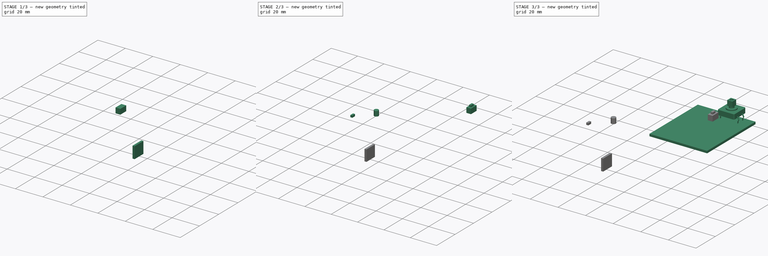
[diagram: build sequence overview — one tinted view per stage of 3, left to right]
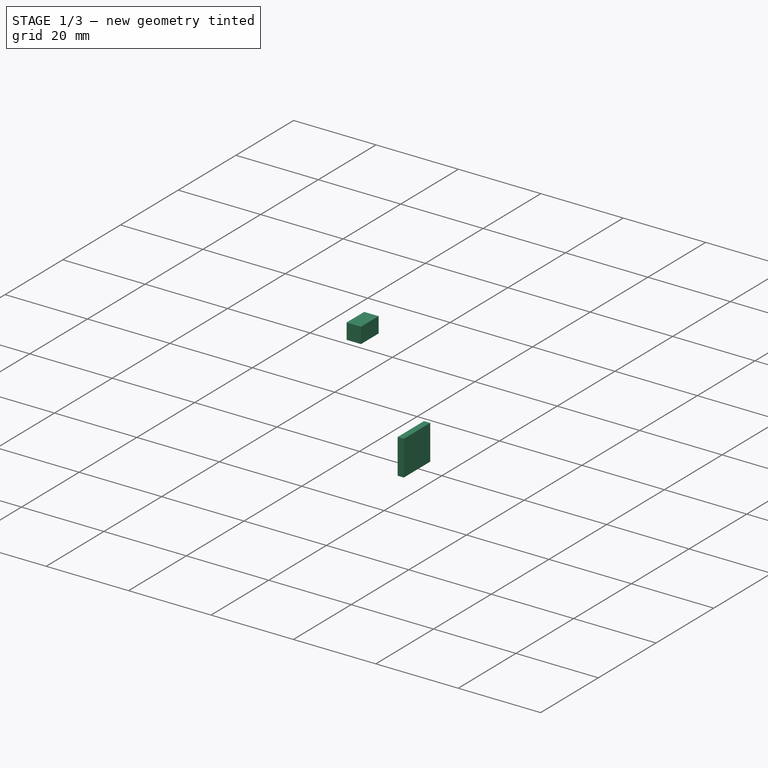
[diagram: stage 1 of 3 — iso view after this stage's code; geometry added in this stage tinted green]
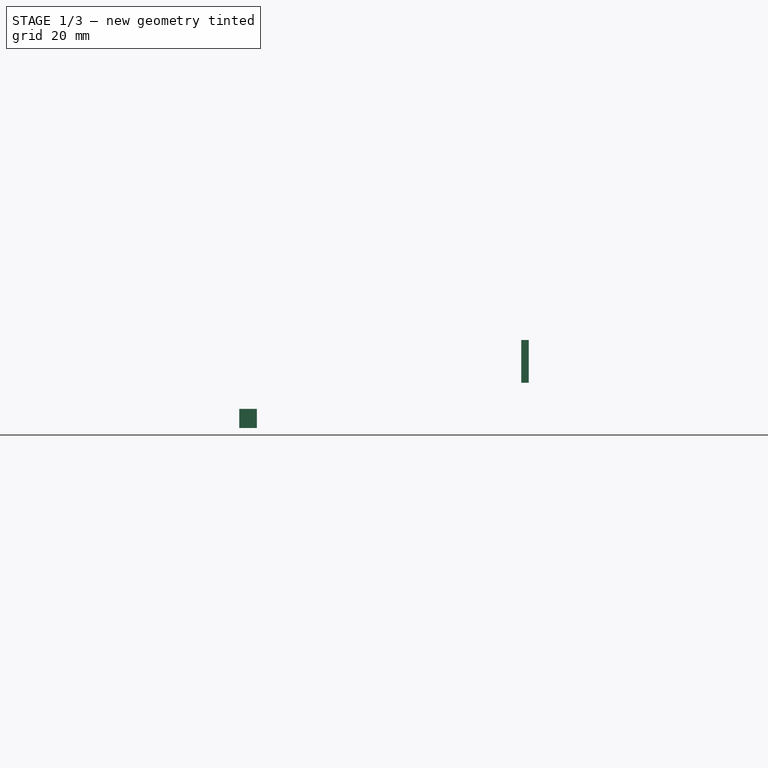
[diagram: stage 1 of 3 — front view after this stage's code; geometry added in this stage tinted green]
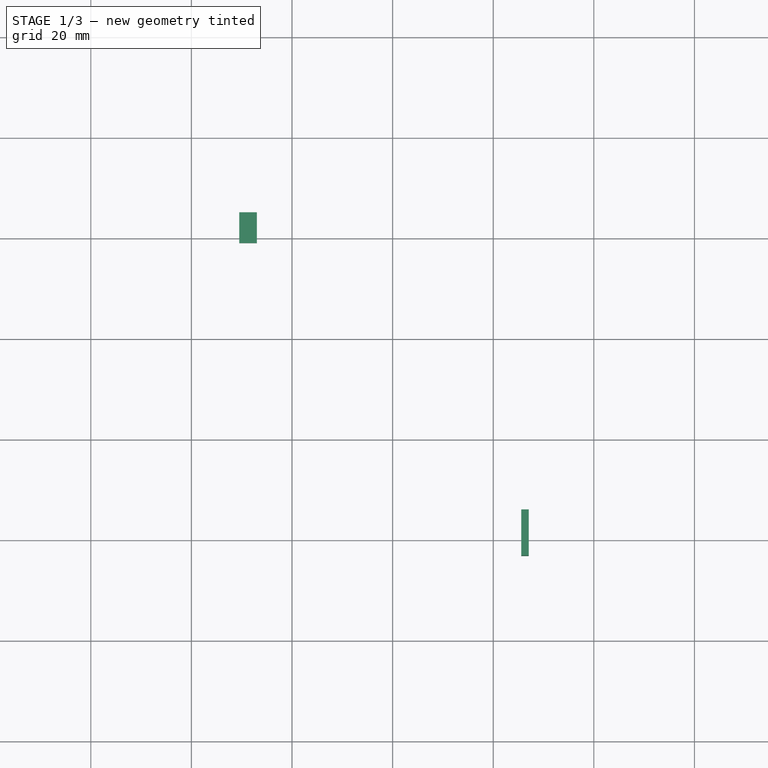
[diagram: stage 1 of 3 — top view after this stage's code; geometry added in this stage tinted green]
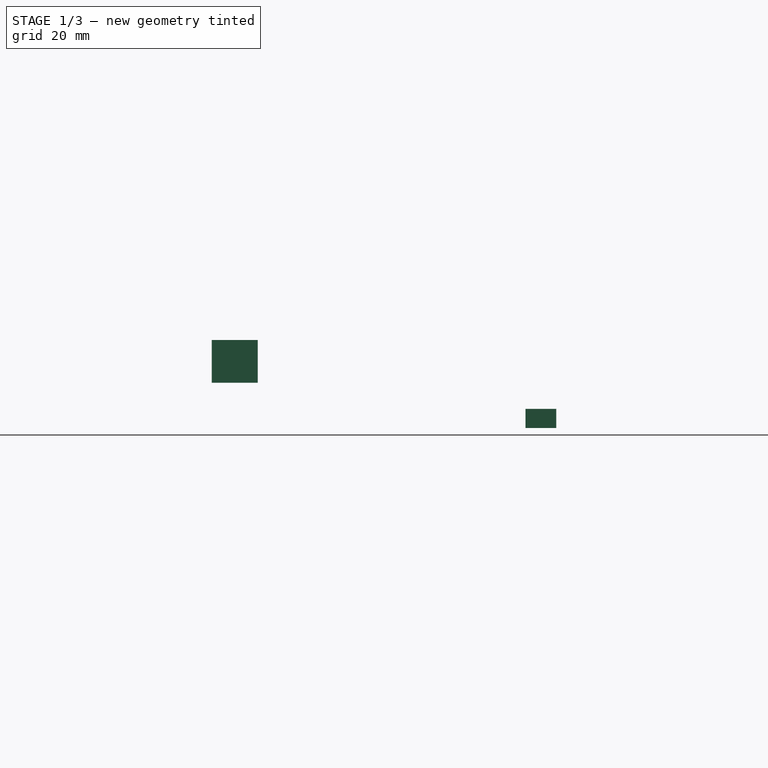
[diagram: stage 1 of 3 — right view after this stage's code; geometry added in this stage tinted green]
FCSTD DOCUMENT  (FreeCAD 0.16R6612 (Git))
Label: Layout_landscape_orig
License: All rights reserved
LicenseURL: http://en.wikipedia.org/wiki/All_rights_reserved
objects: Part::Feature×25, App::DocumentObjectGroup×7, Sketcher::SketchObject×5, PartDesign::Pad×5, Part::MultiFuse×2, Part::Part2DObjectPython×1
note: 43 computed .brp shape members not serialized (recipe doc carries the construction recipe); baked Part::Feature solids carry a one-line shape summary decoded from their .brp

FEATURE [Part::Feature] Pad002001002001  label="Pad002001003"
  Placement = pos=(68,0,20) rot=(0,0,1;0rad)
  shape: bbox 3.3 x 3.3 x 3.75 mm, 3 faces (baked)
FEATURE [Part::Feature] Pad002001002001001  label="Pad002001004"
  Placement = pos=(68,19,20) rot=(0,0,1;0rad)
  shape: bbox 3.3 x 3.3 x 3.75 mm, 3 faces (baked)
FEATURE [App::DocumentObjectGroup] Group005  label="Plunger"
  Group = -> [Pad002001002,Pad002001002001,Pad002001002001001]
FEATURE [Sketcher::SketchObject] Sketch002
  sketch-geometry (4):
    g0: LineSegment StartX=-70.4929 StartY=5.20754 StartZ=0 EndX=-66.9929 EndY=5.20754 EndZ=0
    g1: LineSegment StartX=-66.9929 StartY=5.20754 StartZ=0 EndX=-66.9929 EndY=-0.892464 EndZ=0
    g2: LineSegment StartX=-66.9929 StartY=-0.892464 StartZ=0 EndX=-70.4929 EndY=-0.892464 EndZ=0
    g3: LineSegment StartX=-70.4929 StartY=-0.892464 StartZ=0 EndX=-70.4929 EndY=5.20754 EndZ=0
  constraints (10):
    c: Coincident(g0,g1)
    c: Coincident(g1,g2)
    c: Coincident(g2,g3)
    c: Coincident(g3,g0)
    c: Horizontal(g0)
    c: Horizontal(g2)
    c: Vertical(g1)
    c: Vertical(g3)
    c: DistanceX(g0,g0) = 3.5
    c: DistanceY(g1,g1) = 6.1
FEATURE [PartDesign::Pad] Pad002001002001002
  Length = 3.8
  Length2 = 100
  Sketch = -> Sketch002
  Type = 0
FEATURE [Part::Feature] Fusion008001  label="Fusion009"
  Placement = pos=(83,30.4,22) rot=(0,0,1;0rad)
  shape: bbox 3.5 x 6.1 x 5.2 mm, 11 faces (baked)
FEATURE [App::DocumentObjectGroup] Group006  label="Rectangle"
  Group = -> [Fusion008,Fusion008001]
FEATURE [App::DocumentObjectGroup] Group002  label="Buttons"
  Group = -> [Group004,Group005,Group006]
FEATURE [Part::Feature] Fillet001001  label="Fillet002"
  Placement = pos=(-15,-8,0) rot=(0,0,1;0rad)
  shape: bbox 30 x 48 x 5.3 mm, 12 faces (baked)
FEATURE [Sketcher::SketchObject] Sketch004
  Placement = pos=(0,0,9) rot=(0,0,1;1.5708rad)
  sketch-geometry (4):
    g0: LineSegment StartX=-63.2551 StartY=14.4324 StartZ=0 EndX=-54.1124 EndY=14.4324 EndZ=0
    g1: LineSegment StartX=-54.1124 StartY=14.4324 StartZ=0 EndX=-54.1124 EndY=12.9324 EndZ=0
    g2: LineSegment StartX=-54.1124 StartY=12.9324 StartZ=0 EndX=-63.2551 EndY=12.9324 EndZ=0
    g3: LineSegment StartX=-63.2551 StartY=12.9324 StartZ=0 EndX=-63.2551 EndY=14.4324 EndZ=0
  constraints (9):
    c: Coincident(g0,g1)
    c: Coincident(g1,g2)
    c: Coincident(g2,g3)
    c: Coincident(g3,g0)
    c: Horizontal(g0)
    c: Horizontal(g2)
    c: Vertical(g1)
    c: Vertical(g3)
    c: DistanceY(g1,g1) = 1.5
FEATURE [PartDesign::Pad] Pad002001002001003002  label="header"
  Length = 8.5
  Length2 = 100
  Placement = pos=(0,0,9) rot=(0,0,1;1.5708rad)
  Sketch = -> Sketch004
  Type = 0
FEATURE [Part::Feature] Pad002001002001003002001  label="header001"
  Placement = pos=(-1,81.55,9) rot=(0,0,1;1.5708rad)
  shape: bbox 1.5 x 9.143 x 8.5 mm, 6 faces (baked)
FEATURE [Part::Feature] Pocket002001  label="Pocket003"
  Placement = pos=(9,45,9) rot=(0,0,1;3.14159rad)
  shape: bbox 17.5 x 30.5 x 4.75 mm, 16 faces (baked)
FEATURE [Part::Feature] Pocket003001  label="button_rect"
  Placement = pos=(0,0,22) rot=(0,0,1;0rad)
  shape: bbox 3.5 x 6.1 x 14.45 mm, 48 faces (baked)
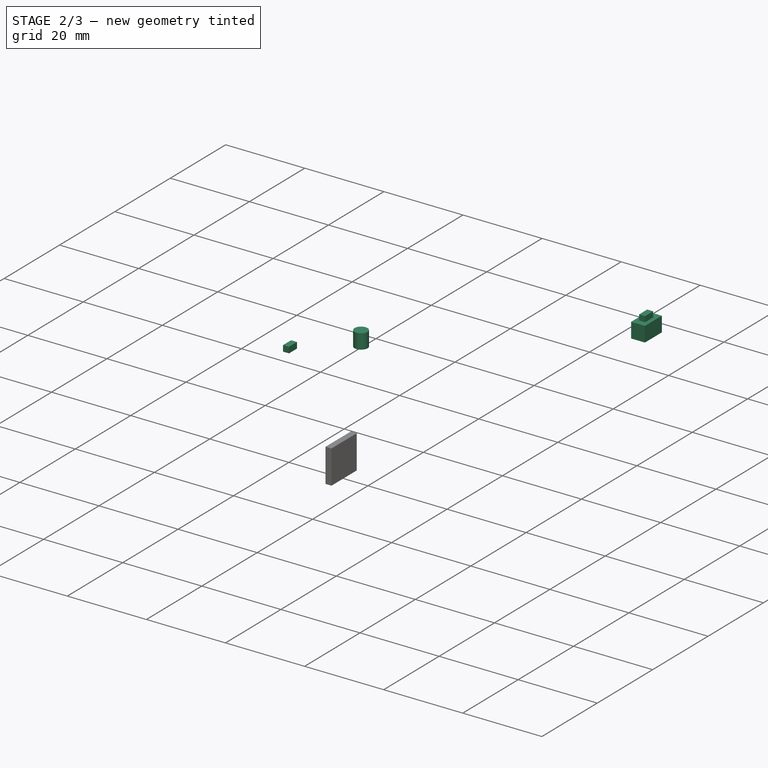
[diagram: stage 2 of 3 — iso view after this stage's code; geometry added in this stage tinted green]
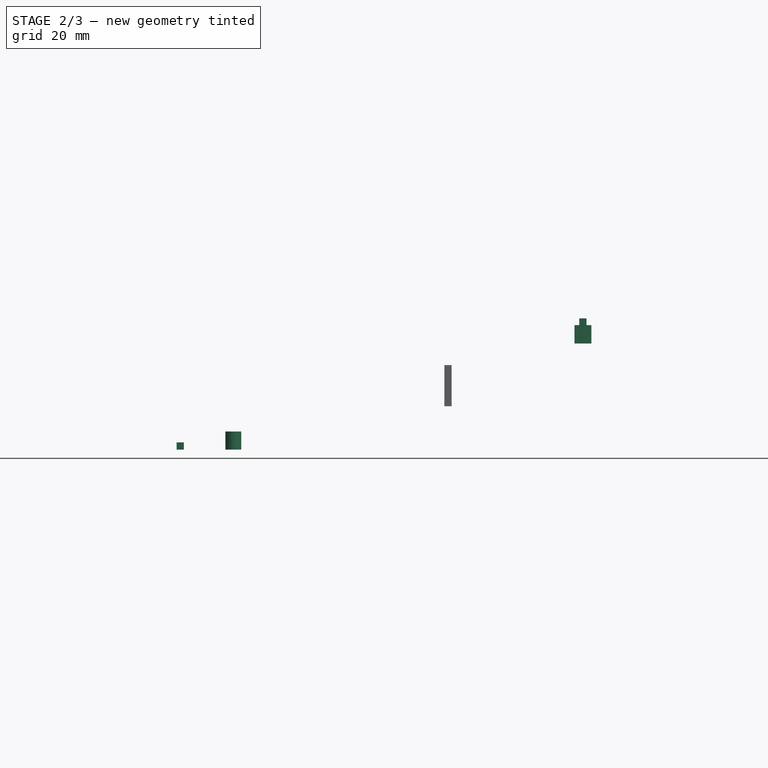
[diagram: stage 2 of 3 — front view after this stage's code; geometry added in this stage tinted green]
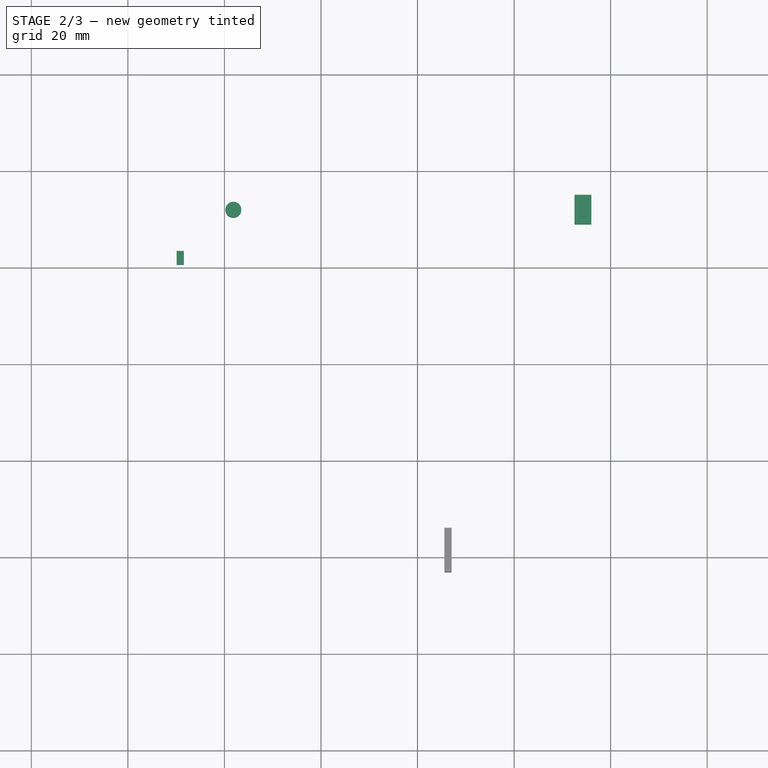
[diagram: stage 2 of 3 — top view after this stage's code; geometry added in this stage tinted green]
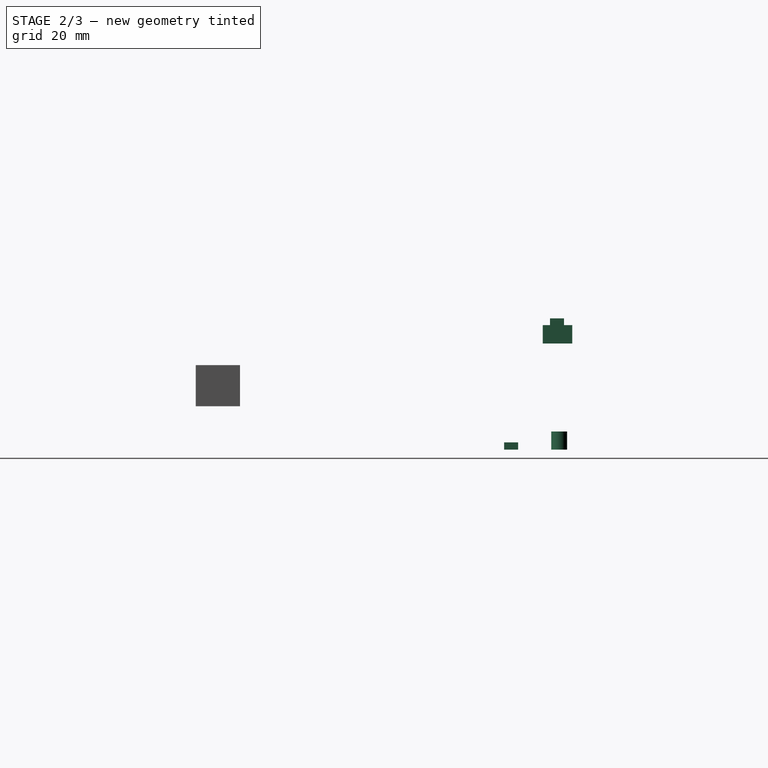
[diagram: stage 2 of 3 — right view after this stage's code; geometry added in this stage tinted green]
FEATURE [Part::Feature] Fusion006  label="Sparkfun_Charger"
  Placement = pos=(-20.9,-35,7) rot=(0,0,1;0rad)
  shape: bbox 24 x 23 x 7 mm, 31 faces, 2 solids (baked)
FEATURE [Part::Feature] Pad001
  Placement = pos=(0,0,4.6) rot=(0,0,1;0rad)
  shape: bbox 41.79 x 91.75 x 1.6 mm, 6 faces (baked)
FEATURE [App::DocumentObjectGroup] Group001  label="PCBs"
  Group = -> [MultiTransform001,Pad,Pad001]
FEATURE [Part::Feature] Pad002001  label="button_pad003"
  Placement = pos=(11,10,24) rot=(0,0,1;0rad)
  shape: bbox 14.07 x 14.07 x 8.5 mm, 12 faces (baked)
FEATURE [Part::Feature] Pad002001001  label="button_pad004"
  Placement = pos=(11,35,24) rot=(0,0,1;0rad)
  shape: bbox 14.07 x 14.07 x 8.5 mm, 12 faces (baked)
FEATURE [Part::Feature] Chamfer001  label="knob_a"
  Placement = pos=(0,-20,17) rot=(0,0,1;0rad)
  shape: bbox 14.5 x 14.5 x 16.91 mm, 4 faces (baked)
FEATURE [Part::Feature] Fusion007  label="knob_b"
  Placement = pos=(0,-20,23) rot=(0,0,1;0rad)
  shape: bbox 16 x 16 x 14 mm, 5 faces (baked)
FEATURE [App::DocumentObjectGroup] Group004
  Group = -> [Fusion,Fusion002,Pad002001,Pad002001001]
FEATURE [Sketcher::SketchObject] Sketch001
  sketch-geometry (1):
    g0: Circle CenterX=-58.1522 CenterY=12.0132 CenterZ=0 NormalX=0 NormalY=0 NormalZ=1 Radius=1.65
  constraints (1):
    c: Radius(g0) = 1.65
FEATURE [PartDesign::Pad] Pad002001002
  Length = 3.75
  Length2 = 100
  Sketch = -> Sketch001
  Type = 0
FEATURE [Sketcher::SketchObject] Sketch003
  sketch-geometry (4):
    g0: LineSegment StartX=-69.8997 StartY=3.5161 StartZ=0 EndX=-68.3997 EndY=3.5161 EndZ=0
    g1: LineSegment StartX=-68.3997 StartY=3.5161 StartZ=0 EndX=-68.3997 EndY=0.616103 EndZ=0
    g2: LineSegment StartX=-68.3997 StartY=0.616103 StartZ=0 EndX=-69.8997 EndY=0.616103 EndZ=0
    g3: LineSegment StartX=-69.8997 StartY=0.616103 StartZ=0 EndX=-69.8997 EndY=3.5161 EndZ=0
  constraints (10):
    c: Coincident(g0,g1)
    c: Coincident(g1,g2)
    c: Coincident(g2,g3)
    c: Coincident(g3,g0)
    c: Horizontal(g0)
    c: Horizontal(g2)
    c: Vertical(g1)
    c: Vertical(g3)
    c: DistanceX(g0,g0) = 1.5
    c: DistanceY(g1,g1) = 2.9
FEATURE [PartDesign::Pad] Pad002001002001003
  Length = 1.5
  Length2 = 100
  Sketch = -> Sketch003
  Type = 0
FEATURE [Part::Feature] Pad002001002001003001  label="Pad002001002001004"
  Placement = pos=(0.4,0,3.7) rot=(0,0,1;0rad)
  shape: bbox 1.5 x 2.9 x 1.5 mm, 6 faces (baked)
FEATURE [Part::MultiFuse] Fusion008
  Placement = pos=(83,9.5,22) rot=(0,0,1;0rad)
  Shapes = -> [Pad002001002001002,Pad002001002001003001]
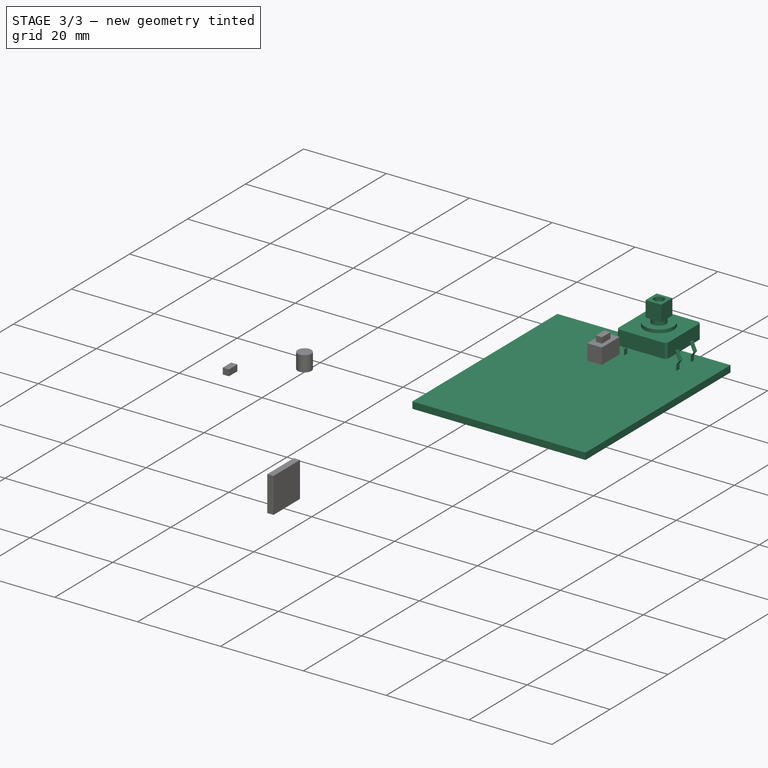
[diagram: stage 3 of 3 — iso view after this stage's code; geometry added in this stage tinted green]
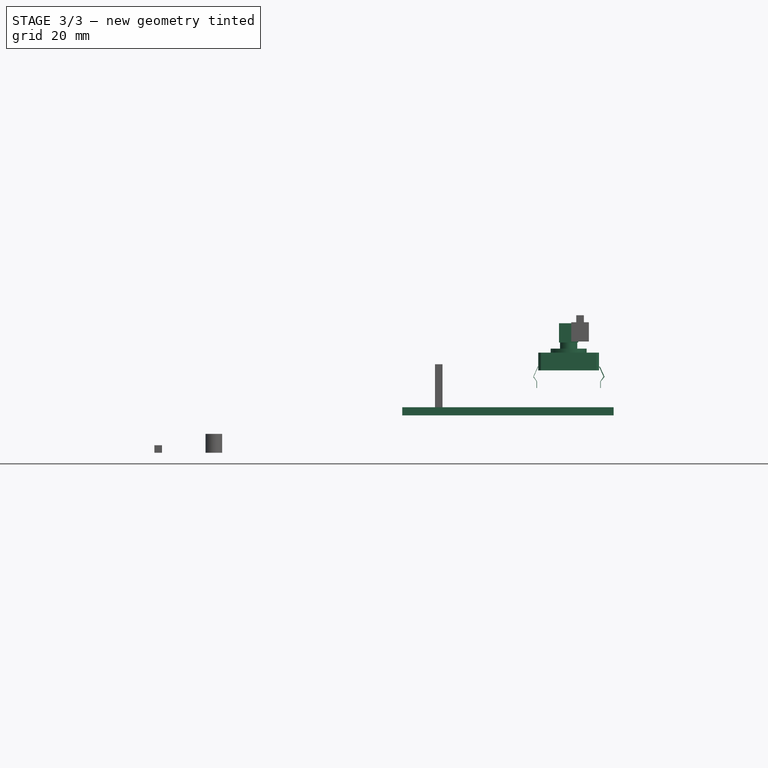
[diagram: stage 3 of 3 — front view after this stage's code; geometry added in this stage tinted green]
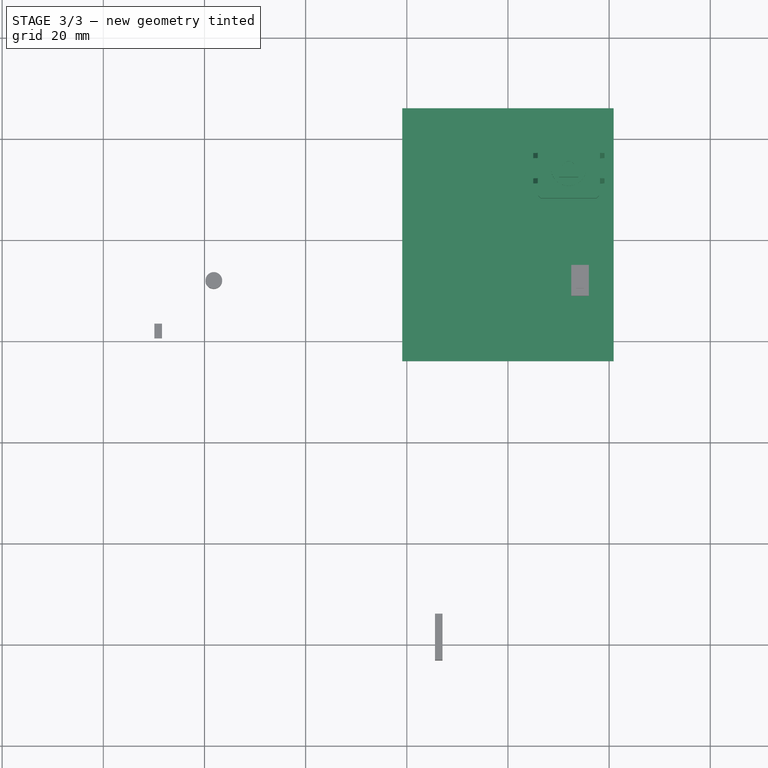
[diagram: stage 3 of 3 — top view after this stage's code; geometry added in this stage tinted green]
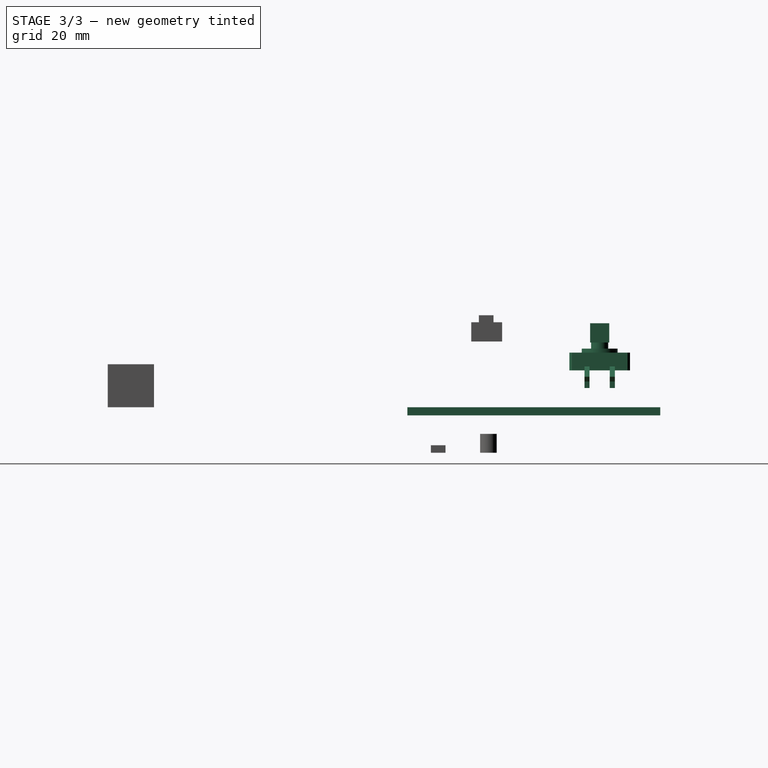
[diagram: stage 3 of 3 — right view after this stage's code; geometry added in this stage tinted green]
FEATURE [Part::Feature] _591A_Box
  Placement = pos=(0,0,1) rot=(1,0,0;3.14159rad)
  shape: bbox 50 x 100 x 21.01 mm, 623 faces (baked)
FEATURE [Part::Feature] _591A_Lid
  Placement = pos=(0,0,1) rot=(0,0,1;1.5708rad)
  shape: bbox 50 x 100 x 5.8 mm, 112 faces (baked)
FEATURE [App::DocumentObjectGroup] Group  label="Box"
  Group = -> [_591A_Lid,_591A_Box]
FEATURE [Part::Feature] MultiTransform001
  Placement = pos=(1,1,16) rot=(0,0,1;0rad)
  shape: bbox 56 x 103 x 0.1 mm, 908 faces (baked)
FEATURE [Part::Feature] Pocket001
  shape: bbox 12 x 12 x 9.3 mm, 21 faces (baked)
FEATURE [Part::Feature] Array001
  shape: bbox 14.1 x 6 x 4.25 mm, 40 faces, 4 solids (baked)
FEATURE [Part::MultiFuse] Fusion  label="Button A"
  Placement = pos=(6,28,16.3) rot=(0,0,1;0rad)
  Shapes = -> [Pocket001,Array001]
FEATURE [Part::Feature] Fusion001  label="NeoPixel_Ring"
  Placement = pos=(0,-20,22) rot=(0,0,1;0rad)
  shape: bbox 37 x 37 x 1.5 mm, 388 faces (baked)
FEATURE [Part::Feature] LinearPattern001  label="OLED_Display"
  Placement = pos=(11.5,8.6171,20) rot=(0,0,1;1.5708rad)
  shape: bbox 27.3 x 27 x 5.1 mm, 54 faces (baked)
FEATURE [Part::Feature] Fusion002  label="Button B"
  Placement = pos=(6,5,16.3) rot=(0,0,1;0rad)
  shape: bbox 14.1 x 12 x 12.8 mm, 61 faces, 5 solids (baked)
FEATURE [Part::Feature] Fusion003  label="rotary_encoder"
  Placement = pos=(-6.6,-27,14) rot=(0,0,1;0rad)
  shape: bbox 15.5 x 14.01 x 20.25 mm, 49 faces, 6 solids (baked)
FEATURE [Part::Part2DObjectPython] Line  # Draft 2D object (typed FeaturePython)
  ChamferSize = 0
  Closed = false
  End = (25,0,0)
  FilletRadius = 0
  Length = 50
  MakeFace = true
  Points = (2) [(-25,-1.53081e-15,0),(25,1.53081e-15,0)]
  Start = (-25,0,0)
  Subdivisions = 0
FEATURE [App::DocumentObjectGroup] Group003  label="Construction"
  Group = -> [Line]
FEATURE [Part::Feature] Fusion004  label="500mAh LiPo"
  Placement = pos=(22,45,7) rot=(0,0,1;3.14159rad)
  shape: bbox 44 x 28.08 x 7.45 mm, 21 faces, 3 solids (baked)
FEATURE [Part::Feature] Fusion005  label="Arduino"
  Placement = pos=(9,12,15) rot=(0,0,1;1.5708rad)
  shape: bbox 18.26 x 34.3 x 3.5 mm, 45 faces, 2 solids (baked)
FEATURE [Sketcher::SketchObject] Sketch
  Placement = pos=(0,9,7.4) rot=(0,0,1;0rad)
  sketch-geometry (4):
    g0: LineSegment StartX=-20.9025 StartY=36.9723 StartZ=0 EndX=20.8874 EndY=36.9723 EndZ=0
    g1: LineSegment StartX=20.8874 StartY=36.9723 StartZ=0 EndX=20.8874 EndY=-13.0277 EndZ=0
    g2: LineSegment StartX=20.8874 StartY=-13.0277 StartZ=0 EndX=-20.9025 EndY=-13.0277 EndZ=0
    g3: LineSegment StartX=-20.9025 StartY=-13.0277 StartZ=0 EndX=-20.9025 EndY=36.9723 EndZ=0
  constraints (9):
    c: Coincident(g0,g1)
    c: Coincident(g1,g2)
    c: Coincident(g2,g3)
    c: Coincident(g3,g0)
    c: Horizontal(g0)
    c: Horizontal(g2)
    c: Vertical(g1)
    c: Vertical(g3)
    c: DistanceY(g3,g3) = 50
FEATURE [PartDesign::Pad] Pad
  Length = 1.6
  Length2 = 100
  Placement = pos=(0,9,7.4) rot=(0,0,1;0rad)
  Sketch = -> Sketch
  Type = 0
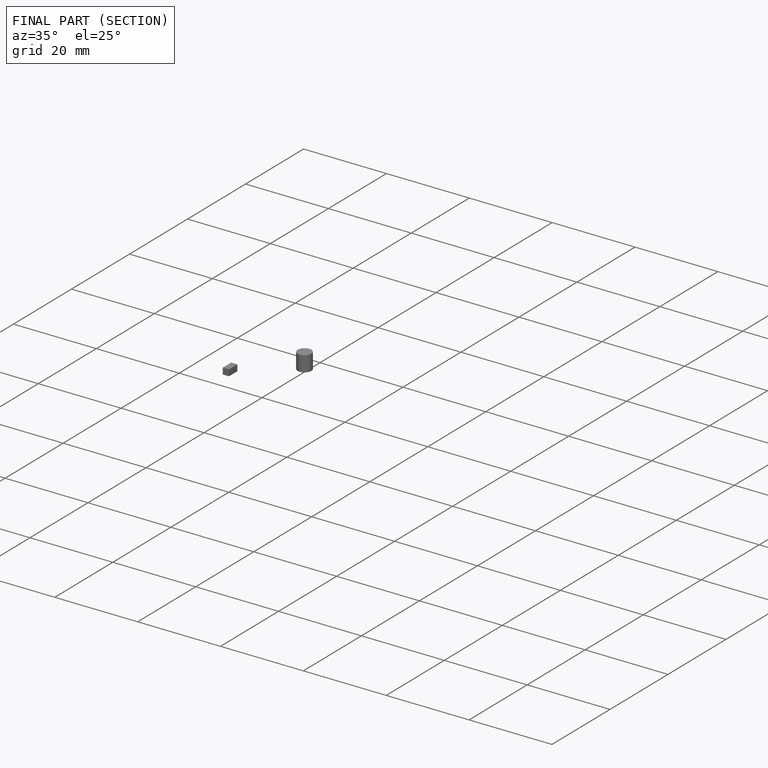
[diagram: finished part — half-section view (interior)]
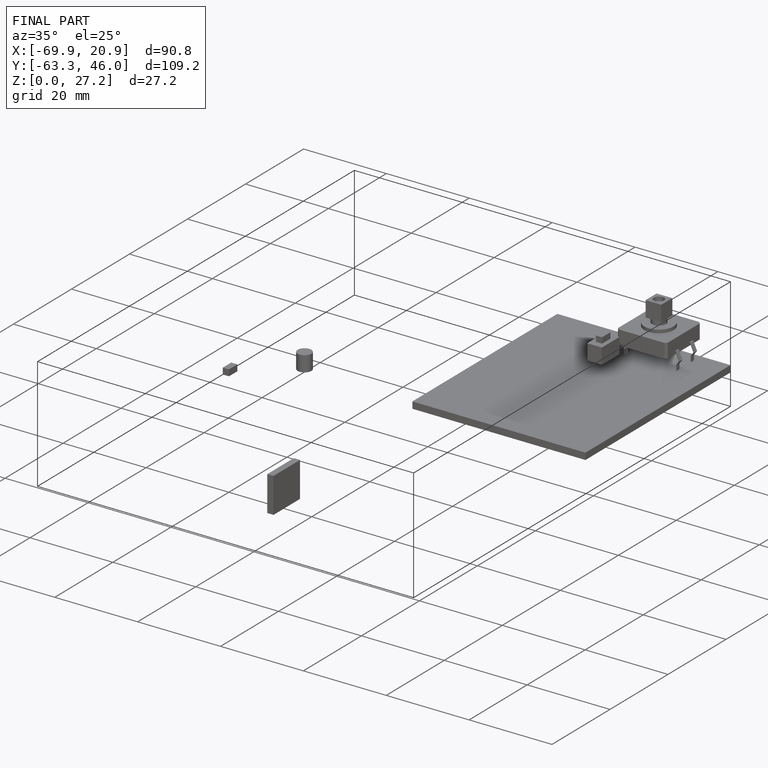
[diagram: finished part — iso view with bounding-box wireframe]
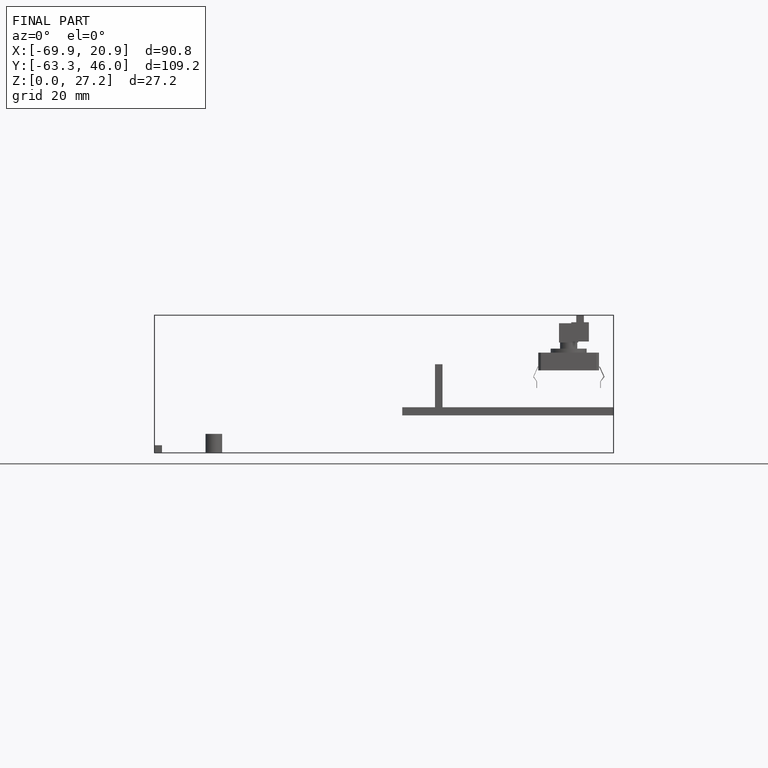
[diagram: finished part — front view with bounding-box wireframe]
